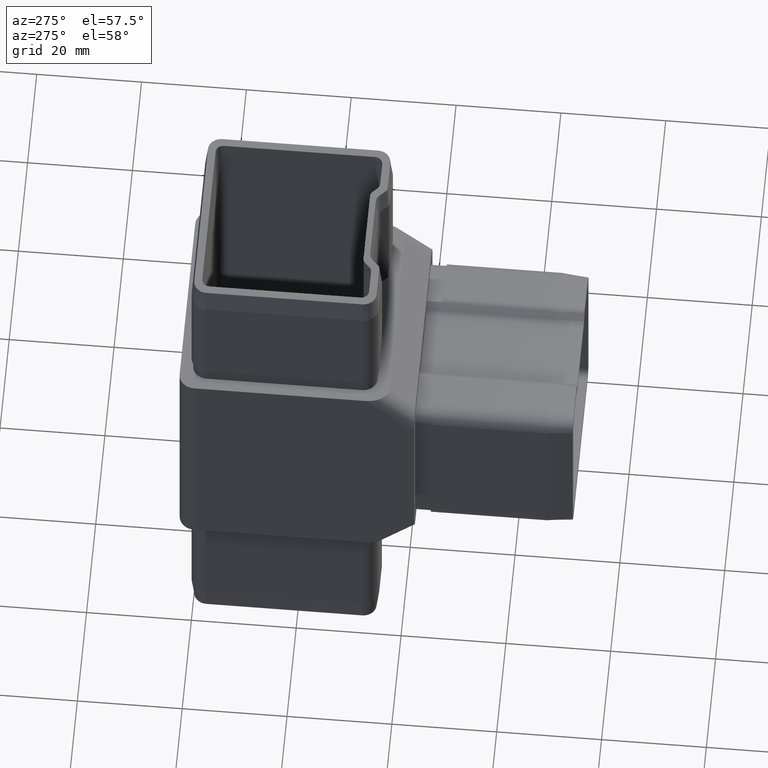
[diagram: clean part render]
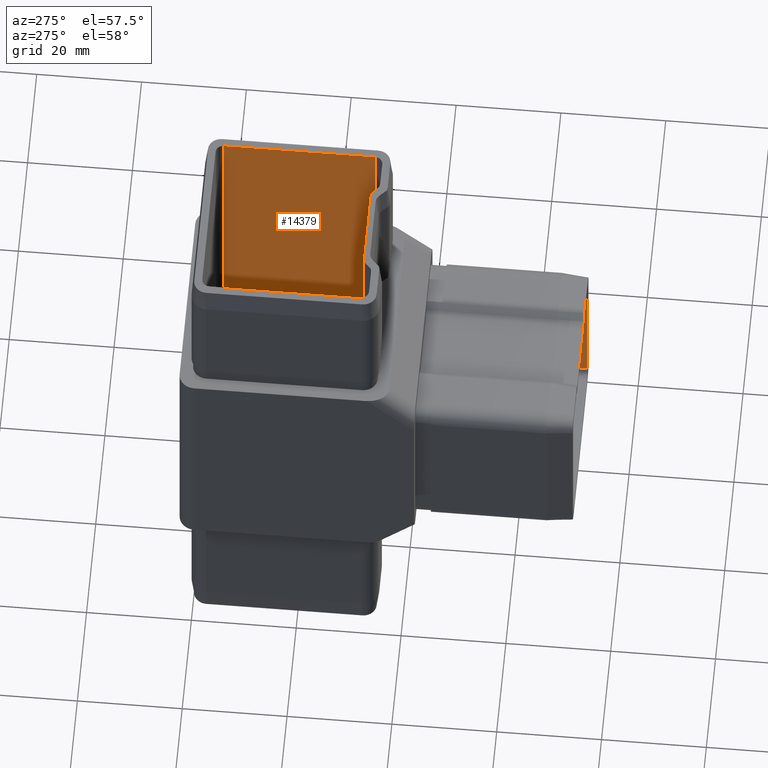
[diagram: same view with one face highlighted and labeled with its STEP entity id]
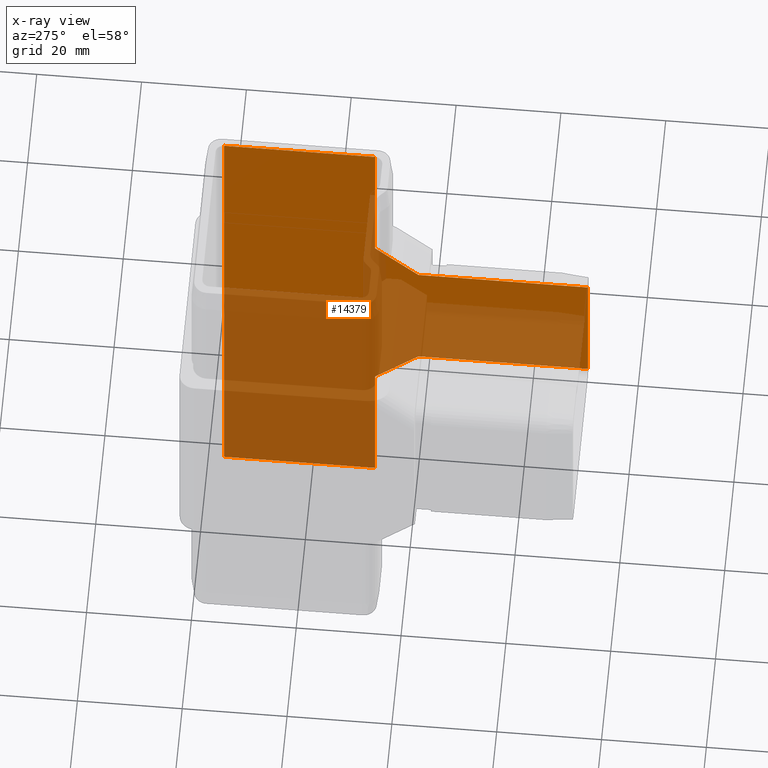
[diagram: x-ray of the same camera — body ghosted, the highlighted face saturated]
A machine part, auxiliary view. The second image highlights one B-rep face of the part: STEP entity #14379.
The next image is the same camera in x-ray: the body ghosted, the highlighted face saturated — about 60% of this face is hidden behind the body in this view.
In plain terms, the highlighted planar face has unit normal (-1, -0, 0).
Its self-contained STEP definition (entity closure, byte-faithful):
#137 = ORIENTED_EDGE ( 'NONE', *, *, #14441, .T. ) ;
#237 = CARTESIAN_POINT ( 'NONE',  ( 15.90000000000000400, -11.89999999999999300, -21.18040405071065600 ) ) ;
#289 = VECTOR ( 'NONE', #3546, 1000.000000000000000 ) ;
#502 = LINE ( 'NONE', #9049, #8392 ) ;
#622 = VERTEX_POINT ( 'NONE', #2485 ) ;
#1079 = CARTESIAN_POINT ( 'NONE',  ( 15.89999999999999700, 16.89999999999999900, -55.00000000000000000 ) ) ;
#1382 = EDGE_LOOP ( 'NONE', ( #18429, #12328, #2571, #14710, #137, #17723, #1891, #7753, #12690, #6414, #9715, #17822 ) ) ;
#1618 = FACE_OUTER_BOUND ( 'NONE', #1382, .T. ) ;
#1891 = ORIENTED_EDGE ( 'NONE', *, *, #13320, .F. ) ;
#1903 = LINE ( 'NONE', #15491, #17215 ) ;
#1918 = CARTESIAN_POINT ( 'NONE',  ( 15.90000000000000700, -11.89999999999999300, -55.00000000000000000 ) ) ;
#2171 = LINE ( 'NONE', #1079, #14956 ) ;
#2301 = CARTESIAN_POINT ( 'NONE',  ( 15.90000000000000700, -11.89999999999999300, 55.00000000000000000 ) ) ;
#2359 = CARTESIAN_POINT ( 'NONE',  ( 15.90000000000000400, -18.54020202535525300, -16.04020202535542300 ) ) ;
#2397 = VECTOR ( 'NONE', #5746, 1000.000000000000000 ) ;
#2421 = DIRECTION ( 'NONE',  ( 1.090341985197068400E-016, -0.7071067811865489100, 0.7071067811865460200 ) ) ;
#2485 = CARTESIAN_POINT ( 'NONE',  ( 15.90000000000000400, -11.89999999999999300, 22.68040405071068100 ) ) ;
#2557 = DIRECTION ( 'NONE',  ( -0.0000000000000000000, -0.0000000000000000000, -1.000000000000000000 ) ) ;
#2571 = ORIENTED_EDGE ( 'NONE', *, *, #5801, .T. ) ;
#2717 = DIRECTION ( 'NONE',  ( 1.541976423090495400E-016, -1.000000000000000000, 0.0000000000000000000 ) ) ;
#2825 = VECTOR ( 'NONE', #2421, 1000.000000000000100 ) ;
#3139 = EDGE_CURVE ( 'NONE', #8112, #15938, #3568, .T. ) ;
#3226 = EDGE_CURVE ( 'NONE', #3538, #11170, #2171, .T. ) ;
#3345 = DIRECTION ( 'NONE',  ( 0.0000000000000000000, 0.0000000000000000000, -1.000000000000000000 ) ) ;
#3538 = VERTEX_POINT ( 'NONE', #13901 ) ;
#3546 = DIRECTION ( 'NONE',  ( -1.541976423090495400E-016, 1.000000000000000000, 4.440892098500626200E-016 ) ) ;
#3568 = LINE ( 'NONE', #11384, #12854 ) ;
#4572 = CARTESIAN_POINT ( 'NONE',  ( 15.90000000000000000, 6.459797974644590800, 41.04020202535534200 ) ) ;
#4759 = CARTESIAN_POINT ( 'NONE',  ( 15.90000000000000700, -52.50000000000000000, 14.39999999999996800 ) ) ;
#5146 = CARTESIAN_POINT ( 'NONE',  ( 15.90000000000000700, 1.734723475976808300E-015, 55.00000000000000000 ) ) ;
#5746 = DIRECTION ( 'NONE',  ( -0.0000000000000000000, -0.0000000000000000000, 1.000000000000000000 ) ) ;
#5801 = EDGE_CURVE ( 'NONE', #15938, #18984, #14050, .T. ) ;
#6319 = LINE ( 'NONE', #2359, #2825 ) ;
#6414 = ORIENTED_EDGE ( 'NONE', *, *, #3226, .T. ) ;
#6578 = VERTEX_POINT ( 'NONE', #1918 ) ;
#6626 = DIRECTION ( 'NONE',  ( 0.0000000000000000000, 0.0000000000000000000, 1.000000000000000000 ) ) ;
#6867 = EDGE_CURVE ( 'NONE', #11170, #6578, #10102, .T. ) ;
#7172 = LINE ( 'NONE', #4572, #17621 ) ;
#7309 = VERTEX_POINT ( 'NONE', #18876 ) ;
#7753 = ORIENTED_EDGE ( 'NONE', *, *, #9971, .T. ) ;
#8112 = VERTEX_POINT ( 'NONE', #11654 ) ;
#8351 = VECTOR ( 'NONE', #6626, 1000.000000000000000 ) ;
#8392 = VECTOR ( 'NONE', #3345, 1000.000000000000000 ) ;
#8845 = CARTESIAN_POINT ( 'NONE',  ( 15.90000000000000700, 1.734723475976808300E-015, -55.00000000000000000 ) ) ;
#9045 = EDGE_CURVE ( 'NONE', #622, #18431, #18182, .T. ) ;
#9049 = CARTESIAN_POINT ( 'NONE',  ( 15.89999999999999700, 16.89999999999999900, 19.99999999999999600 ) ) ;
#9543 = EDGE_CURVE ( 'NONE', #18076, #3538, #1903, .T. ) ;
#9641 = CARTESIAN_POINT ( 'NONE',  ( 15.90000000000000400, -18.68040405071066000, 14.39999999999998400 ) ) ;
#9648 = VECTOR ( 'NONE', #18249, 1000.000000000000000 ) ;
#9715 = ORIENTED_EDGE ( 'NONE', *, *, #6867, .T. ) ;
#9720 = CARTESIAN_POINT ( 'NONE',  ( 15.90000000000000400, -20.18040405071066000, 14.39999999999997900 ) ) ;
#9971 = EDGE_CURVE ( 'NONE', #12029, #18076, #502, .T. ) ;
#10102 = LINE ( 'NONE', #8845, #11988 ) ;
#10678 = LINE ( 'NONE', #5146, #11849 ) ;
#10729 = CARTESIAN_POINT ( 'NONE',  ( 15.90000000000000700, -52.50000000000000000, 2.499999999999975600 ) ) ;
#10826 = DIRECTION ( 'NONE',  ( 0.0000000000000000000, 0.0000000000000000000, -1.000000000000000000 ) ) ;
#11170 = VERTEX_POINT ( 'NONE', #12424 ) ;
#11307 = EDGE_CURVE ( 'NONE', #7309, #8112, #6319, .T. ) ;
#11384 = CARTESIAN_POINT ( 'NONE',  ( 15.90000000000000700, -52.49999999999999300, -14.40000000000002200 ) ) ;
#11559 = VERTEX_POINT ( 'NONE', #9720 ) ;
#11654 = CARTESIAN_POINT ( 'NONE',  ( 15.90000000000000400, -20.18040405071067400, -14.40000000000000700 ) ) ;
#11849 = VECTOR ( 'NONE', #16744, 1000.000000000000000 ) ;
#11988 = VECTOR ( 'NONE', #12023, 1000.000000000000000 ) ;
#12023 = DIRECTION ( 'NONE',  ( 1.091021054073463800E-016, -1.000000000000000000, 0.0000000000000000000 ) ) ;
#12029 = VERTEX_POINT ( 'NONE', #16873 ) ;
#12328 = ORIENTED_EDGE ( 'NONE', *, *, #3139, .T. ) ;
#12424 = CARTESIAN_POINT ( 'NONE',  ( 15.90000000000000400, 16.89999999999999900, -55.00000000000000000 ) ) ;
#12626 = CARTESIAN_POINT ( 'NONE',  ( 15.90000000000000400, -52.49999999999999300, -14.40000000000002200 ) ) ;
#12690 = ORIENTED_EDGE ( 'NONE', *, *, #9543, .T. ) ;
#12854 = VECTOR ( 'NONE', #17096, 1000.000000000000000 ) ;
#13248 = EDGE_CURVE ( 'NONE', #6578, #7309, #13480, .T. ) ;
#13320 = EDGE_CURVE ( 'NONE', #12029, #18431, #10678, .T. ) ;
#13480 = LINE ( 'NONE', #237, #8351 ) ;
#13901 = CARTESIAN_POINT ( 'NONE',  ( 15.89999999999999700, 16.89999999999999900, -19.99999999999999600 ) ) ;
#14050 = LINE ( 'NONE', #10729, #9648 ) ;
#14379 = ADVANCED_FACE ( 'NONE', ( #1618 ), #14585, .T. ) ;
#14441 = EDGE_CURVE ( 'NONE', #11559, #622, #7172, .T. ) ;
#14585 = PLANE ( 'NONE',  #18509 ) ;
#14710 = ORIENTED_EDGE ( 'NONE', *, *, #18347, .T. ) ;
#14956 = VECTOR ( 'NONE', #2557, 1000.000000000000000 ) ;
#15113 = DIRECTION ( 'NONE',  ( -1.090341985197063700E-016, 0.7071067811865460200, 0.7071067811865489100 ) ) ;
#15491 = CARTESIAN_POINT ( 'NONE',  ( 15.89999999999999700, 16.89999999999999900, -25.00000000000000000 ) ) ;
#15938 = VERTEX_POINT ( 'NONE', #12626 ) ;
#16021 = DIRECTION ( 'NONE',  ( -1.000000000000000000, -1.541976423090495400E-016, 0.0000000000000000000 ) ) ;
#16195 = CARTESIAN_POINT ( 'NONE',  ( 15.90000000000000400, 16.89999999999999900, 19.99999999999999600 ) ) ;
#16744 = DIRECTION ( 'NONE',  ( 1.091021054073463800E-016, -1.000000000000000000, 0.0000000000000000000 ) ) ;
#16873 = CARTESIAN_POINT ( 'NONE',  ( 15.90000000000000400, 16.89999999999999900, 55.00000000000000000 ) ) ;
#17096 = DIRECTION ( 'NONE',  ( 1.541976423090495400E-016, -1.000000000000000000, -4.440892098500626200E-016 ) ) ;
#17215 = VECTOR ( 'NONE', #10826, 1000.000000000000000 ) ;
#17621 = VECTOR ( 'NONE', #15113, 1000.000000000000100 ) ;
#17664 = CARTESIAN_POINT ( 'NONE',  ( 15.90000000000000400, -11.89999999999999300, 25.00000000000000000 ) ) ;
#17723 = ORIENTED_EDGE ( 'NONE', *, *, #9045, .T. ) ;
#17822 = ORIENTED_EDGE ( 'NONE', *, *, #13248, .T. ) ;
#18076 = VERTEX_POINT ( 'NONE', #16195 ) ;
#18128 = LINE ( 'NONE', #9641, #289 ) ;
#18182 = LINE ( 'NONE', #17664, #2397 ) ;
#18249 = DIRECTION ( 'NONE',  ( 1.091021054073463800E-016, -2.220446049250312600E-016, 1.000000000000000000 ) ) ;
#18347 = EDGE_CURVE ( 'NONE', #18984, #11559, #18128, .T. ) ;
#18429 = ORIENTED_EDGE ( 'NONE', *, *, #11307, .T. ) ;
#18431 = VERTEX_POINT ( 'NONE', #2301 ) ;
#18509 = AXIS2_PLACEMENT_3D ( 'NONE', #19147, #16021, #2717 ) ;
#18876 = CARTESIAN_POINT ( 'NONE',  ( 15.90000000000000400, -11.89999999999999300, -22.68040405071065300 ) ) ;
#18984 = VERTEX_POINT ( 'NONE', #4759 ) ;
#19147 = CARTESIAN_POINT ( 'NONE',  ( 15.89999999999999700, 22.50000000000000000, 25.00000000000000000 ) ) ;